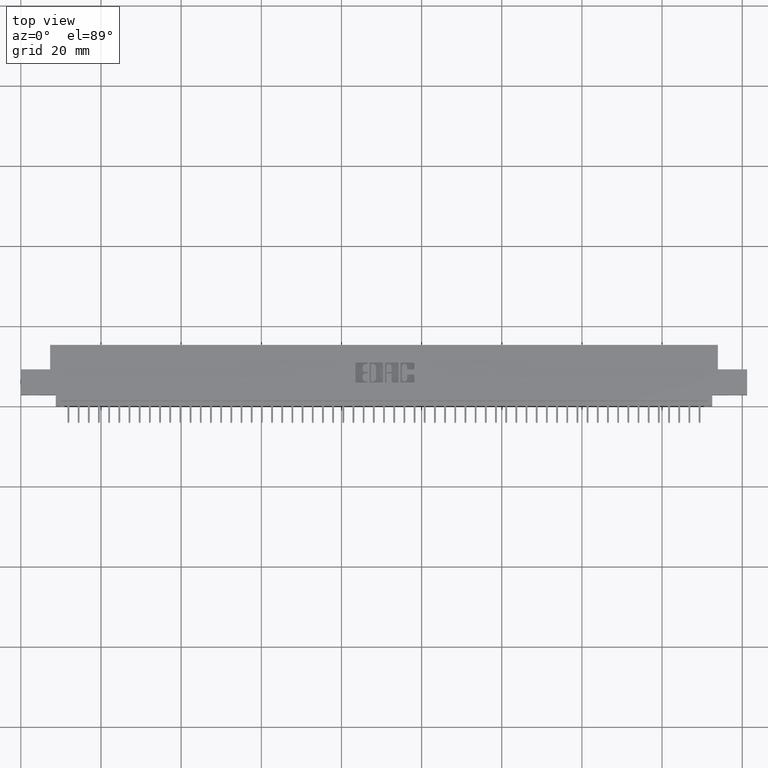
[diagram: clean part render]
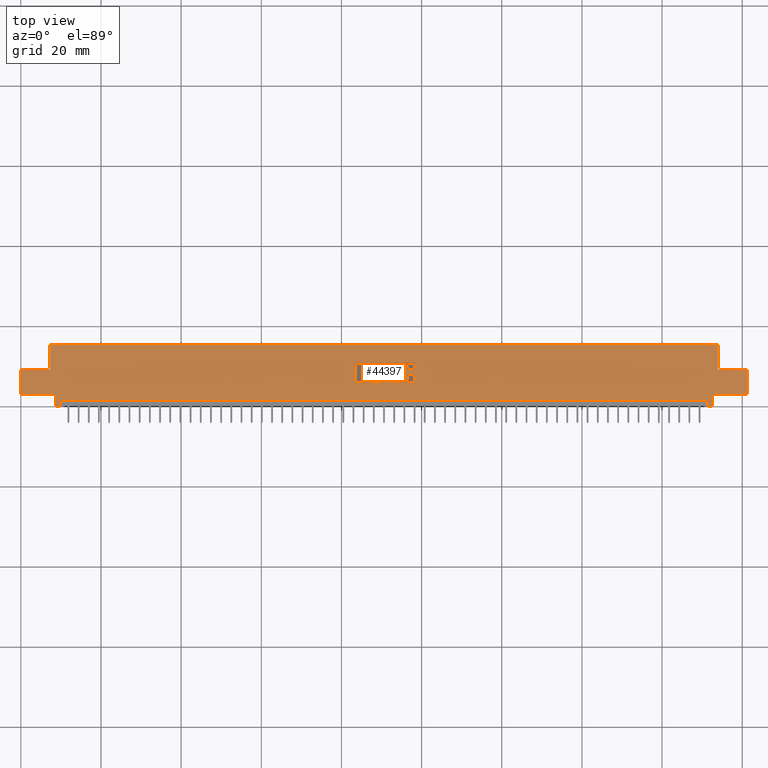
[diagram: same view with one face highlighted and labeled with its STEP entity id]
A machine part, top view. The second image highlights one B-rep face of the part: STEP entity #44397.
In plain terms, the highlighted planar face has unit normal (0, 0, -1).
Its self-contained STEP definition (entity closure, byte-faithful):
#209 = DIRECTION ( 'NONE',  ( -0.0000000000000000000, 0.0000000000000000000, 1.000000000000000000 ) ) ;
#237 = ORIENTED_EDGE ( 'NONE', *, *, #19118, .F. ) ;
#272 = VERTEX_POINT ( 'NONE', #3800 ) ;
#335 = DIRECTION ( 'NONE',  ( 0.0000000000000000000, -1.000000000000000000, 0.0000000000000000000 ) ) ;
#400 = DIRECTION ( 'NONE',  ( -0.0000000000000000000, 0.0000000000000000000, 1.000000000000000000 ) ) ;
#405 = DIRECTION ( 'NONE',  ( 1.000000000000000000, 0.0000000000000000000, 0.0000000000000000000 ) ) ;
#543 = LINE ( 'NONE', #7965, #12207 ) ;
#560 = CIRCLE ( 'NONE', #27318, 0.009815670203797057652 ) ;
#656 = CARTESIAN_POINT ( 'NONE',  ( 3.738538053301300401, 0.4133410318342096157, 0.0000000000000000000 ) ) ;
#750 = ORIENTED_EDGE ( 'NONE', *, *, #36275, .F. ) ;
#788 = EDGE_CURVE ( 'NONE', #30190, #33948, #29105, .T. ) ;
#897 = AXIS2_PLACEMENT_3D ( 'NONE', #45380, #38220, #13317 ) ;
#1010 = CIRCLE ( 'NONE', #9429, 0.006870969142657995000 ) ;
#1026 = LINE ( 'NONE', #3670, #34390 ) ;
#1047 = DIRECTION ( 'NONE',  ( 1.000000000000000000, 0.0000000000000000000, 0.0000000000000000000 ) ) ;
#1244 = AXIS2_PLACEMENT_3D ( 'NONE', #46348, #9504, #23861 ) ;
#1256 = CARTESIAN_POINT ( 'NONE',  ( 0.2874999999999999778, 0.3599999999999999867, 0.0000000000000000000 ) ) ;
#1392 = CIRCLE ( 'NONE', #22024, 0.009815670203840767480 ) ;
#1404 = VECTOR ( 'NONE', #39214, 39.37007874015748143 ) ;
#1502 = CARTESIAN_POINT ( 'NONE',  ( 0.3425000000000010814, 0.1100000000000000006, 0.0000000000000000000 ) ) ;
#1526 = CARTESIAN_POINT ( 'NONE',  ( 3.558911288571669829, 0.0000000000000000000, 0.0000000000000000000 ) ) ;
#1531 = DIRECTION ( 'NONE',  ( 0.0000000000000000000, -1.000000000000000000, 0.0000000000000000000 ) ) ;
#1546 = EDGE_CURVE ( 'NONE', #272, #44266, #21054, .T. ) ;
#1684 = VERTEX_POINT ( 'NONE', #44256 ) ;
#1748 = CARTESIAN_POINT ( 'NONE',  ( 3.400633606535351738, 0.4162857328953857294, 0.0000000000000000000 ) ) ;
#1850 = CARTESIAN_POINT ( 'NONE',  ( 3.768721239177992288, 0.3831578459575290529, 0.0000000000000000000 ) ) ;
#1857 = ORIENTED_EDGE ( 'NONE', *, *, #2955, .F. ) ;
#1963 = DIRECTION ( 'NONE',  ( -0.0000000000000000000, 0.0000000000000000000, 1.000000000000000000 ) ) ;
#1974 = CARTESIAN_POINT ( 'NONE',  ( 3.407504575677998471, 0.2337142671046474052, 0.0000000000000000000 ) ) ;
#1986 = DIRECTION ( 'NONE',  ( -0.0000000000000000000, 0.0000000000000000000, 1.000000000000000000 ) ) ;
#1991 = EDGE_CURVE ( 'NONE', #31024, #8583, #17412, .T. ) ;
#2043 = DIRECTION ( 'NONE',  ( 1.000000000000000000, 0.0000000000000000000, 0.0000000000000000000 ) ) ;
#2057 = CARTESIAN_POINT ( 'NONE',  ( 7.135000000000000675, 0.5999999999999999778, 0.0000000000000000000 ) ) ;
#2072 = DIRECTION ( 'NONE',  ( -1.000000000000000000, 0.0000000000000000000, 0.0000000000000000000 ) ) ;
#2111 = CARTESIAN_POINT ( 'NONE',  ( -1.634053534411870227E-15, 0.2268432979619607048, 0.0000000000000000000 ) ) ;
#2138 = VECTOR ( 'NONE', #43481, 39.37007874015748143 ) ;
#2147 = PLANE ( 'NONE',  #37516 ) ;
#2243 = DIRECTION ( 'NONE',  ( -0.0000000000000000000, 0.0000000000000000000, 1.000000000000000000 ) ) ;
#2252 = CIRCLE ( 'NONE', #9895, 0.02625691779517394173 ) ;
#2273 = DIRECTION ( 'NONE',  ( -0.0000000000000000000, 0.0000000000000000000, 1.000000000000000000 ) ) ;
#2368 = EDGE_CURVE ( 'NONE', #18268, #31024, #46321, .T. ) ;
#2498 = AXIS2_PLACEMENT_3D ( 'NONE', #6702, #21999, #10287 ) ;
#2527 = CARTESIAN_POINT ( 'NONE',  ( 3.652160155507788719, 0.2366589681657872979, 0.0000000000000000000 ) ) ;
#2609 = DIRECTION ( 'NONE',  ( 0.0000000000000000000, 1.000000000000000000, -0.0000000000000000000 ) ) ;
#2641 = CARTESIAN_POINT ( 'NONE',  ( 3.355726915352927886, 0.2867188862052000298, 0.0000000000000000000 ) ) ;
#2653 = EDGE_CURVE ( 'NONE', #22636, #37980, #4399, .T. ) ;
#2757 = VECTOR ( 'NONE', #42027, 39.37007874015748143 ) ;
#2772 = CIRCLE ( 'NONE', #15742, 0.009815670203841313918 ) ;
#2854 = DIRECTION ( 'NONE',  ( 0.0000000000000000000, 0.0000000000000000000, -1.000000000000000000 ) ) ;
#2955 = EDGE_CURVE ( 'NONE', #12189, #4418, #1392, .T. ) ;
#3062 = CARTESIAN_POINT ( 'NONE',  ( 3.642344485303985469, 0.3083133606535429228, 0.0000000000000000000 ) ) ;
#3067 = ORIENTED_EDGE ( 'NONE', *, *, #10583, .F. ) ;
#3247 = DIRECTION ( 'NONE',  ( -1.000000000000000000, 0.0000000000000000000, 0.0000000000000000000 ) ) ;
#3248 = DIRECTION ( 'NONE',  ( 0.0000000000000000000, 1.000000000000000000, -0.0000000000000000000 ) ) ;
#3340 = DIRECTION ( 'NONE',  ( 1.000000000000000000, 0.0000000000000000000, 0.0000000000000000000 ) ) ;
#3518 = DIRECTION ( 'NONE',  ( -0.0000000000000000000, 0.0000000000000000000, 1.000000000000000000 ) ) ;
#3542 = EDGE_CURVE ( 'NONE', #45932, #6087, #18046, .T. ) ;
#3573 = ORIENTED_EDGE ( 'NONE', *, *, #33697, .F. ) ;
#3619 = VECTOR ( 'NONE', #35672, 39.37007874015748143 ) ;
#3667 = ORIENTED_EDGE ( 'NONE', *, *, #30327, .T. ) ;
#3670 = CARTESIAN_POINT ( 'NONE',  ( 0.0000000000000000000, 0.5999999999999999778, 0.0000000000000000000 ) ) ;
#3685 = VERTEX_POINT ( 'NONE', #11819 ) ;
#3762 = CARTESIAN_POINT ( 'NONE',  ( 3.804793827176978116, 0.3539562271012330896, 0.0000000000000000000 ) ) ;
#3800 = CARTESIAN_POINT ( 'NONE',  ( 6.742500000000000604, 0.05000000000000000278, 0.0000000000000000000 ) ) ;
#3988 = DIRECTION ( 'NONE',  ( -0.0000000000000000000, -1.000000000000000000, -0.0000000000000000000 ) ) ;
#4005 = AXIS2_PLACEMENT_3D ( 'NONE', #43860, #40264, #22070 ) ;
#4033 = VERTEX_POINT ( 'NONE', #42857 ) ;
#4112 = VERTEX_POINT ( 'NONE', #26104 ) ;
#4177 = DIRECTION ( 'NONE',  ( -0.0000000000000000000, 0.0000000000000000000, 1.000000000000000000 ) ) ;
#4181 = LINE ( 'NONE', #25958, #4785 ) ;
#4207 = CARTESIAN_POINT ( 'NONE',  ( 6.792500000000000426, 0.0000000000000000000, 0.0000000000000000000 ) ) ;
#4385 = ORIENTED_EDGE ( 'NONE', *, *, #21585, .F. ) ;
#4399 = CIRCLE ( 'NONE', #6690, 0.009815670203805252486 ) ;
#4418 = VERTEX_POINT ( 'NONE', #21296 ) ;
#4442 = VERTEX_POINT ( 'NONE', #25342 ) ;
#4486 = DIRECTION ( 'NONE',  ( 1.000000000000000000, 0.0000000000000000000, 0.0000000000000000000 ) ) ;
#4557 = CIRCLE ( 'NONE', #46593, 0.006870969142648706424 ) ;
#4581 = EDGE_CURVE ( 'NONE', #45681, #29700, #6722, .T. ) ;
#4652 = DIRECTION ( 'NONE',  ( -1.000000000000000000, 0.0000000000000000000, 0.0000000000000000000 ) ) ;
#4785 = VECTOR ( 'NONE', #14958, 39.37007874015748143 ) ;
#4803 = LINE ( 'NONE', #27050, #25725 ) ;
#5035 = CIRCLE ( 'NONE', #27211, 0.009815670203803066735 ) ;
#5143 = ORIENTED_EDGE ( 'NONE', *, *, #34142, .F. ) ;
#5159 = VERTEX_POINT ( 'NONE', #28308 ) ;
#5180 = ORIENTED_EDGE ( 'NONE', *, *, #9934, .F. ) ;
#5313 = CARTESIAN_POINT ( 'NONE',  ( 3.387137060005084521, 0.3318709691426833253, 0.0000000000000000000 ) ) ;
#5396 = DIRECTION ( 'NONE',  ( -0.0000000000000000000, 0.0000000000000000000, 1.000000000000000000 ) ) ;
#5432 = DIRECTION ( 'NONE',  ( 0.0000000000000000000, 1.000000000000000000, -0.0000000000000000000 ) ) ;
#5439 = DIRECTION ( 'NONE',  ( 1.000000000000000000, 0.0000000000000000000, 0.0000000000000000000 ) ) ;
#5681 = DIRECTION ( 'NONE',  ( -0.0000000000000000000, 0.0000000000000000000, 1.000000000000000000 ) ) ;
#5724 = EDGE_CURVE ( 'NONE', #6087, #23369, #28482, .T. ) ;
#5922 = AXIS2_PLACEMENT_3D ( 'NONE', #22221, #209, #3340 ) ;
#6020 = DIRECTION ( 'NONE',  ( 1.000000000000000000, -0.0000000000000000000, -0.0000000000000000000 ) ) ;
#6087 = VERTEX_POINT ( 'NONE', #12417 ) ;
#6199 = EDGE_CURVE ( 'NONE', #24335, #39433, #1010, .T. ) ;
#6255 = DIRECTION ( 'NONE',  ( -0.0000000000000000000, 0.0000000000000000000, 1.000000000000000000 ) ) ;
#6269 = DIRECTION ( 'NONE',  ( 1.000000000000000000, 0.0000000000000000000, 0.0000000000000000000 ) ) ;
#6276 = CARTESIAN_POINT ( 'NONE',  ( 3.387137060005110278, 0.2719953808994898803, 0.0000000000000000000 ) ) ;
#6304 = CARTESIAN_POINT ( 'NONE',  ( 3.576088711428331290, 0.4133410318342096157, 0.0000000000000000000 ) ) ;
#6350 = CIRCLE ( 'NONE', #14851, 0.009815670203803066735 ) ;
#6690 = AXIS2_PLACEMENT_3D ( 'NONE', #11126, #7527, #37205 ) ;
#6702 = CARTESIAN_POINT ( 'NONE',  ( 3.738538053301265762, 0.2366589681657894073, 0.0000000000000000000 ) ) ;
#6722 = CIRCLE ( 'NONE', #34225, 0.03141014465221592805 ) ;
#6794 = CARTESIAN_POINT ( 'NONE',  ( 0.0000000000000000000, 0.5999999999999999778, 0.0000000000000000000 ) ) ;
#6843 = EDGE_CURVE ( 'NONE', #4033, #3685, #19382, .T. ) ;
#7012 = EDGE_CURVE ( 'NONE', #47021, #39433, #19714, .T. ) ;
#7126 = CIRCLE ( 'NONE', #46112, 0.006870969142663458512 ) ;
#7129 = CARTESIAN_POINT ( 'NONE',  ( 3.355726915352927886, 0.2719953808994898803, 0.0000000000000000000 ) ) ;
#7184 = EDGE_CURVE ( 'NONE', #5159, #19830, #39750, .T. ) ;
#7361 = VERTEX_POINT ( 'NONE', #19841 ) ;
#7423 = VECTOR ( 'NONE', #21397, 39.37007874015748143 ) ;
#7527 = DIRECTION ( 'NONE',  ( -0.0000000000000000000, 0.0000000000000000000, 1.000000000000000000 ) ) ;
#7539 = CIRCLE ( 'NONE', #35848, 0.009815670203795418339 ) ;
#7574 = VERTEX_POINT ( 'NONE', #7129 ) ;
#7660 = EDGE_CURVE ( 'NONE', #44634, #15181, #6350, .T. ) ;
#7775 = ORIENTED_EDGE ( 'NONE', *, *, #2653, .F. ) ;
#7849 = CARTESIAN_POINT ( 'NONE',  ( 3.864178631909941153, 0.0000000000000000000, 0.0000000000000000000 ) ) ;
#7903 = CARTESIAN_POINT ( 'NONE',  ( 3.742464321382819037, 0.0000000000000000000, 0.0000000000000000000 ) ) ;
#7915 = ORIENTED_EDGE ( 'NONE', *, *, #9397, .F. ) ;
#7965 = CARTESIAN_POINT ( 'NONE',  ( -0.0000000000000000000, 0.2268432979619826595, 0.0000000000000000000 ) ) ;
#8003 = CARTESIAN_POINT ( 'NONE',  ( 3.400633606535310438, 0.3250000000000198286, 0.0000000000000000000 ) ) ;
#8041 = ORIENTED_EDGE ( 'NONE', *, *, #6199, .F. ) ;
#8107 = LINE ( 'NONE', #44727, #30049 ) ;
#8183 = EDGE_CURVE ( 'NONE', #19830, #4033, #7126, .T. ) ;
#8200 = EDGE_CURVE ( 'NONE', #37980, #26392, #37508, .T. ) ;
#8238 = CARTESIAN_POINT ( 'NONE',  ( 0.0000000000000000000, 0.2268432979619841028, 0.0000000000000000000 ) ) ;
#8343 = VERTEX_POINT ( 'NONE', #23840 ) ;
#8351 = ORIENTED_EDGE ( 'NONE', *, *, #22962, .F. ) ;
#8433 = LINE ( 'NONE', #33811, #44978 ) ;
#8434 = DIRECTION ( 'NONE',  ( 1.000000000000000000, 0.0000000000000000000, 0.0000000000000000000 ) ) ;
#8479 = EDGE_CURVE ( 'NONE', #41148, #29700, #36510, .T. ) ;
#8583 = VERTEX_POINT ( 'NONE', #26189 ) ;
#8590 = EDGE_CURVE ( 'NONE', #32305, #15181, #22601, .T. ) ;
#8734 = VERTEX_POINT ( 'NONE', #9650 ) ;
#8738 = EDGE_CURVE ( 'NONE', #20776, #12241, #15897, .T. ) ;
#8783 = CARTESIAN_POINT ( 'NONE',  ( 0.0000000000000000000, 0.4231567020380505029, 0.0000000000000000000 ) ) ;
#8924 = CIRCLE ( 'NONE', #26506, 0.03141014465218205237 ) ;
#9022 = CARTESIAN_POINT ( 'NONE',  ( 6.847499999999999254, 0.3599999999999999867, 0.0000000000000000000 ) ) ;
#9121 = LINE ( 'NONE', #23468, #9546 ) ;
#9131 = EDGE_CURVE ( 'NONE', #44634, #45894, #23419, .T. ) ;
#9144 = DIRECTION ( 'NONE',  ( -0.0000000000000000000, 0.0000000000000000000, 1.000000000000000000 ) ) ;
#9246 = ORIENTED_EDGE ( 'NONE', *, *, #34290, .F. ) ;
#9320 = CARTESIAN_POINT ( 'NONE',  ( 3.407504575678000691, 0.4162857328953857294, 0.0000000000000000000 ) ) ;
#9397 = EDGE_CURVE ( 'NONE', #22109, #29687, #24836, .T. ) ;
#9429 = AXIS2_PLACEMENT_3D ( 'NONE', #10711, #21246, #29123 ) ;
#9504 = DIRECTION ( 'NONE',  ( -0.0000000000000000000, 0.0000000000000000000, 1.000000000000000000 ) ) ;
#9546 = VECTOR ( 'NONE', #31123, 39.37007874015748143 ) ;
#9598 = LINE ( 'NONE', #24204, #14692 ) ;
#9634 = CARTESIAN_POINT ( 'NONE',  ( 3.854362961706156998, 0.3063502266127570151, 0.0000000000000000000 ) ) ;
#9650 = CARTESIAN_POINT ( 'NONE',  ( 3.558911288571669829, 0.2366589681657894073, 0.0000000000000000000 ) ) ;
#9895 = AXIS2_PLACEMENT_3D ( 'NONE', #1850, #5681, #31750 ) ;
#9934 = EDGE_CURVE ( 'NONE', #18126, #1684, #4181, .T. ) ;
#9941 = ORIENTED_EDGE ( 'NONE', *, *, #4581, .T. ) ;
#9963 = LINE ( 'NONE', #16687, #26457 ) ;
#9965 = CARTESIAN_POINT ( 'NONE',  ( 3.400633606415414789, 0.2405852362473096806, 0.0000000000000000000 ) ) ;
#10089 = ORIENTED_EDGE ( 'NONE', *, *, #40837, .F. ) ;
#10264 = FACE_BOUND ( 'NONE', #42858, .T. ) ;
#10287 = DIRECTION ( 'NONE',  ( 1.000000000000000000, 0.0000000000000000000, 0.0000000000000000000 ) ) ;
#10385 = CARTESIAN_POINT ( 'NONE',  ( 3.701729290037014231, 0.4231567020380060384, 0.0000000000000000000 ) ) ;
#10547 = CARTESIAN_POINT ( 'NONE',  ( 3.804793827176967458, 0.2965345564089690300, 0.0000000000000000000 ) ) ;
#10583 = EDGE_CURVE ( 'NONE', #8343, #18268, #9598, .T. ) ;
#10610 = AXIS2_PLACEMENT_3D ( 'NONE', #41401, #44985, #16273 ) ;
#10636 = VERTEX_POINT ( 'NONE', #32097 ) ;
#10667 = VECTOR ( 'NONE', #6269, 39.37007874015748143 ) ;
#10711 = CARTESIAN_POINT ( 'NONE',  ( 3.582959680570987793, 0.2337142671046474052, 0.0000000000000000000 ) ) ;
#10848 = CIRCLE ( 'NONE', #897, 0.009815670203811809741 ) ;
#10971 = CARTESIAN_POINT ( 'NONE',  ( 3.768721239177998950, 0.2668421540424524840, 0.0000000000000000000 ) ) ;
#11004 = EDGE_CURVE ( 'NONE', #7361, #41008, #13792, .T. ) ;
#11031 = CARTESIAN_POINT ( 'NONE',  ( 3.794978156973166428, 0.3637718973050446669, 0.0000000000000000000 ) ) ;
#11126 = CARTESIAN_POINT ( 'NONE',  ( 3.854362961706167212, 0.3637718973050381166, 0.0000000000000000000 ) ) ;
#11245 = DIRECTION ( 'NONE',  ( 1.000000000000000000, 0.0000000000000000000, 0.0000000000000000000 ) ) ;
#11248 = CIRCLE ( 'NONE', #5922, 0.03141014465217440571 ) ;
#11297 = CIRCLE ( 'NONE', #21231, 0.009815670203796511215 ) ;
#11478 = CARTESIAN_POINT ( 'NONE',  ( 3.433270709963010425, 0.4231567020380505029, 0.0000000000000000000 ) ) ;
#11690 = DIRECTION ( 'NONE',  ( 0.0000000000000000000, 1.000000000000000000, -0.0000000000000000000 ) ) ;
#11803 = LINE ( 'NONE', #1256, #28148 ) ;
#11819 = CARTESIAN_POINT ( 'NONE',  ( 3.400633606535310438, 0.3318709691426833253, 0.0000000000000000000 ) ) ;
#11861 = CARTESIAN_POINT ( 'NONE',  ( 3.355726915352910122, 0.3780046191005192457, 0.0000000000000000000 ) ) ;
#11891 = VERTEX_POINT ( 'NONE', #5313 ) ;
#11931 = VERTEX_POINT ( 'NONE', #20371 ) ;
#12014 = ORIENTED_EDGE ( 'NONE', *, *, #36300, .F. ) ;
#12016 = EDGE_CURVE ( 'NONE', #34037, #44260, #17799, .T. ) ;
#12050 = VERTEX_POINT ( 'NONE', #28731 ) ;
#12055 = CARTESIAN_POINT ( 'NONE',  ( 3.854362961706153889, 0.2965345564089699182, 0.0000000000000000000 ) ) ;
#12129 = VECTOR ( 'NONE', #335, 39.37007874015748143 ) ;
#12189 = VERTEX_POINT ( 'NONE', #11478 ) ;
#12202 = EDGE_CURVE ( 'NONE', #31002, #37287, #8107, .T. ) ;
#12207 = VECTOR ( 'NONE', #33342, 39.37007874015748143 ) ;
#12210 = CARTESIAN_POINT ( 'NONE',  ( 0.3925000000000002376, 0.05000000000000000278, 0.0000000000000000000 ) ) ;
#12241 = VERTEX_POINT ( 'NONE', #40670 ) ;
#12417 = CARTESIAN_POINT ( 'NONE',  ( 3.728722383097458959, 0.2366589681657894073, 0.0000000000000000000 ) ) ;
#12455 = ORIENTED_EDGE ( 'NONE', *, *, #18460, .F. ) ;
#12542 = VERTEX_POINT ( 'NONE', #3762 ) ;
#12572 = EDGE_CURVE ( 'NONE', #272, #29055, #18814, .T. ) ;
#12601 = CARTESIAN_POINT ( 'NONE',  ( 3.864178631909972683, 0.0000000000000000000, 0.0000000000000000000 ) ) ;
#12799 = VERTEX_POINT ( 'NONE', #40262 ) ;
#12800 = DIRECTION ( 'NONE',  ( 1.000000000000000000, 0.0000000000000000000, 0.0000000000000000000 ) ) ;
#12917 = AXIS2_PLACEMENT_3D ( 'NONE', #13397, #20810, #28686 ) ;
#12942 = ORIENTED_EDGE ( 'NONE', *, *, #18672, .T. ) ;
#12951 = ORIENTED_EDGE ( 'NONE', *, *, #3542, .F. ) ;
#12986 = DIRECTION ( 'NONE',  ( 0.0000000000000000000, -1.000000000000000000, 0.0000000000000000000 ) ) ;
#13185 = DIRECTION ( 'NONE',  ( 1.000000000000000000, 0.0000000000000000000, 0.0000000000000000000 ) ) ;
#13317 = DIRECTION ( 'NONE',  ( 1.000000000000000000, 0.0000000000000000000, 0.0000000000000000000 ) ) ;
#13397 = CARTESIAN_POINT ( 'NONE',  ( 3.701729290037011122, 0.2366589681657803312, 0.0000000000000000000 ) ) ;
#13470 = ORIENTED_EDGE ( 'NONE', *, *, #33988, .T. ) ;
#13518 = ORIENTED_EDGE ( 'NONE', *, *, #5724, .F. ) ;
#13587 = CARTESIAN_POINT ( 'NONE',  ( 0.0000000000000000000, 0.3063502266127570151, 0.0000000000000000000 ) ) ;
#13792 = LINE ( 'NONE', #41152, #24594 ) ;
#13794 = CARTESIAN_POINT ( 'NONE',  ( 3.711544960240807267, 0.2366589681657803312, 0.0000000000000000000 ) ) ;
#14110 = CARTESIAN_POINT ( 'NONE',  ( 0.0000000000000000000, 0.3599999999999999867, 0.0000000000000000000 ) ) ;
#14243 = ORIENTED_EDGE ( 'NONE', *, *, #41496, .T. ) ;
#14319 = VECTOR ( 'NONE', #28413, 39.37007874015748143 ) ;
#14320 = CARTESIAN_POINT ( 'NONE',  ( 0.3925000000000002376, 0.05000000000000000278, 0.0000000000000000000 ) ) ;
#14383 = ORIENTED_EDGE ( 'NONE', *, *, #46190, .F. ) ;
#14471 = ORIENTED_EDGE ( 'NONE', *, *, #37992, .T. ) ;
#14484 = VERTEX_POINT ( 'NONE', #42695 ) ;
#14487 = CARTESIAN_POINT ( 'NONE',  ( 3.854362961706167212, 0.3539562271012330341, 0.0000000000000000000 ) ) ;
#14590 = ORIENTED_EDGE ( 'NONE', *, *, #1546, .F. ) ;
#14627 = ORIENTED_EDGE ( 'NONE', *, *, #17121, .T. ) ;
#14635 = ORIENTED_EDGE ( 'NONE', *, *, #37010, .F. ) ;
#14692 = VECTOR ( 'NONE', #6020, 39.37007874015748143 ) ;
#14752 = CARTESIAN_POINT ( 'NONE',  ( 3.589830649713647404, 0.2337142671046474052, 0.0000000000000000000 ) ) ;
#14851 = AXIS2_PLACEMENT_3D ( 'NONE', #2527, #5396, #2043 ) ;
#14918 = DIRECTION ( 'NONE',  ( -0.0000000000000000000, 1.000000000000000000, -0.0000000000000000000 ) ) ;
#14958 = DIRECTION ( 'NONE',  ( -1.000000000000000000, -1.189163988687022540E-13, 0.0000000000000000000 ) ) ;
#14975 = ORIENTED_EDGE ( 'NONE', *, *, #24195, .F. ) ;
#15028 = DIRECTION ( 'NONE',  ( 1.000000000000000000, 0.0000000000000000000, 0.0000000000000000000 ) ) ;
#15035 = LINE ( 'NONE', #7849, #19726 ) ;
#15091 = LINE ( 'NONE', #7903, #43546 ) ;
#15150 = ORIENTED_EDGE ( 'NONE', *, *, #36945, .F. ) ;
#15181 = VERTEX_POINT ( 'NONE', #18828 ) ;
#15239 = EDGE_CURVE ( 'NONE', #10636, #12189, #31027, .T. ) ;
#15409 = DIRECTION ( 'NONE',  ( 0.0000000000000000000, 1.000000000000000000, -0.0000000000000000000 ) ) ;
#15530 = CARTESIAN_POINT ( 'NONE',  ( 3.387137060005125822, 0.3780046191005192457, 0.0000000000000000000 ) ) ;
#15543 = VERTEX_POINT ( 'NONE', #13794 ) ;
#15631 = AXIS2_PLACEMENT_3D ( 'NONE', #43532, #17459, #32059 ) ;
#15742 = AXIS2_PLACEMENT_3D ( 'NONE', #656, #44456, #4486 ) ;
#15744 = CARTESIAN_POINT ( 'NONE',  ( 3.400633606535335751, 0.2337142671046474052, 0.0000000000000000000 ) ) ;
#15848 = DIRECTION ( 'NONE',  ( 1.000000000000000000, 0.0000000000000000000, 0.0000000000000000000 ) ) ;
#15897 = LINE ( 'NONE', #26892, #39294 ) ;
#15960 = CARTESIAN_POINT ( 'NONE',  ( 3.576088711428331290, 0.2337142671046474052, 0.0000000000000000000 ) ) ;
#16183 = CIRCLE ( 'NONE', #26859, 0.009815670203787221770 ) ;
#16244 = VERTEX_POINT ( 'NONE', #9320 ) ;
#16273 = DIRECTION ( 'NONE',  ( 1.000000000000000000, 0.0000000000000000000, 0.0000000000000000000 ) ) ;
#16442 = CARTESIAN_POINT ( 'NONE',  ( 3.585904381632127880, 0.4231567020380060384, 0.0000000000000000000 ) ) ;
#16452 = ORIENTED_EDGE ( 'NONE', *, *, #15239, .F. ) ;
#16466 = EDGE_CURVE ( 'NONE', #44266, #12799, #47095, .T. ) ;
#16529 = ORIENTED_EDGE ( 'NONE', *, *, #12572, .T. ) ;
#16530 = AXIS2_PLACEMENT_3D ( 'NONE', #10971, #25555, #15028 ) ;
#16555 = CIRCLE ( 'NONE', #43303, 0.006870969142648706424 ) ;
#16656 = LINE ( 'NONE', #31243, #2757 ) ;
#16687 = CARTESIAN_POINT ( 'NONE',  ( -0.0000000000000000000, 0.4231567020380060384, 0.0000000000000000000 ) ) ;
#16934 = VECTOR ( 'NONE', #15409, 39.37007874015748143 ) ;
#16938 = ORIENTED_EDGE ( 'NONE', *, *, #37657, .T. ) ;
#16972 = VECTOR ( 'NONE', #3247, 39.37007874015748143 ) ;
#17045 = CARTESIAN_POINT ( 'NONE',  ( 3.742464321382819037, 0.2668421540424524840, 0.0000000000000000000 ) ) ;
#17075 = LINE ( 'NONE', #1526, #22323 ) ;
#17121 = EDGE_CURVE ( 'NONE', #41008, #47021, #5035, .T. ) ;
#17279 = CARTESIAN_POINT ( 'NONE',  ( 3.804793827176967458, 0.3063502266127570151, 0.0000000000000000000 ) ) ;
#17406 = ORIENTED_EDGE ( 'NONE', *, *, #788, .T. ) ;
#17412 = LINE ( 'NONE', #20287, #14319 ) ;
#17454 = FACE_BOUND ( 'NONE', #41299, .T. ) ;
#17459 = DIRECTION ( 'NONE',  ( -0.0000000000000000000, 0.0000000000000000000, 1.000000000000000000 ) ) ;
#17496 = EDGE_CURVE ( 'NONE', #12241, #8734, #37131, .T. ) ;
#17540 = ORIENTED_EDGE ( 'NONE', *, *, #7012, .T. ) ;
#17561 = ORIENTED_EDGE ( 'NONE', *, *, #8200, .F. ) ;
#17695 = CARTESIAN_POINT ( 'NONE',  ( 0.3925000000000002376, 0.05000000000000000278, 0.0000000000000000000 ) ) ;
#17799 = CIRCLE ( 'NONE', #44549, 0.009815670203787768208 ) ;
#17812 = CARTESIAN_POINT ( 'NONE',  ( 3.296342110619919108, 0.2268432979619844359, 0.0000000000000000000 ) ) ;
#17853 = VECTOR ( 'NONE', #3248, 39.37007874015748143 ) ;
#17889 = VECTOR ( 'NONE', #11245, 39.37007874015748143 ) ;
#17964 = EDGE_CURVE ( 'NONE', #20877, #20272, #37164, .T. ) ;
#17998 = ORIENTED_EDGE ( 'NONE', *, *, #32617, .F. ) ;
#18046 = LINE ( 'NONE', #29056, #12129 ) ;
#18120 = EDGE_LOOP ( 'NONE', ( #14471, #10089, #24439, #21403, #37783, #43528, #39096, #30158, #26099, #14627, #17540, #8041, #41832, #237 ) ) ;
#18126 = VERTEX_POINT ( 'NONE', #9965 ) ;
#18268 = VERTEX_POINT ( 'NONE', #37004 ) ;
#18272 = VECTOR ( 'NONE', #34240, 39.37007874015748143 ) ;
#18333 = CARTESIAN_POINT ( 'NONE',  ( 0.3425000000000010814, 0.1100000000000000006, 0.0000000000000000000 ) ) ;
#18352 = CARTESIAN_POINT ( 'NONE',  ( 6.742500000000000604, 0.05000000000000000278, 0.0000000000000000000 ) ) ;
#18360 = CARTESIAN_POINT ( 'NONE',  ( 3.854362961706132573, 0.4133410318342103928, 0.0000000000000000000 ) ) ;
#18437 = EDGE_CURVE ( 'NONE', #8583, #34598, #30976, .T. ) ;
#18460 = EDGE_CURVE ( 'NONE', #16244, #12050, #16555, .T. ) ;
#18571 = VERTEX_POINT ( 'NONE', #36244 ) ;
#18672 = EDGE_CURVE ( 'NONE', #31002, #18571, #39591, .T. ) ;
#18814 = LINE ( 'NONE', #18352, #28519 ) ;
#18828 = CARTESIAN_POINT ( 'NONE',  ( 3.652160155507786499, 0.2268432979619841028, 0.0000000000000000000 ) ) ;
#18996 = EDGE_CURVE ( 'NONE', #45894, #7361, #560, .T. ) ;
#19118 = EDGE_CURVE ( 'NONE', #41603, #24215, #11297, .T. ) ;
#19382 = CIRCLE ( 'NONE', #46149, 0.006870969142663458512 ) ;
#19415 = CARTESIAN_POINT ( 'NONE',  ( 3.589830649713647404, 0.3083133606535450322, 0.0000000000000000000 ) ) ;
#19474 = CARTESIAN_POINT ( 'NONE',  ( 3.589830649713647404, 0.0000000000000000000, 0.0000000000000000000 ) ) ;
#19692 = EDGE_CURVE ( 'NONE', #25099, #4442, #15035, .T. ) ;
#19714 = LINE ( 'NONE', #19474, #30859 ) ;
#19726 = VECTOR ( 'NONE', #11690, 39.37007874015748143 ) ;
#19795 = CARTESIAN_POINT ( 'NONE',  ( 0.2874999999999999778, 0.3599999999999999867, 0.0000000000000000000 ) ) ;
#19830 = VERTEX_POINT ( 'NONE', #20454 ) ;
#19841 = CARTESIAN_POINT ( 'NONE',  ( 3.632528815100188435, 0.3181290308573492820, 0.0000000000000000000 ) ) ;
#19936 = VERTEX_POINT ( 'NONE', #10385 ) ;
#19983 = CARTESIAN_POINT ( 'NONE',  ( 3.742464321382819037, 0.3831578459575290529, 0.0000000000000000000 ) ) ;
#20039 = DIRECTION ( 'NONE',  ( 1.000000000000000000, 0.0000000000000000000, 0.0000000000000000000 ) ) ;
#20105 = CARTESIAN_POINT ( 'NONE',  ( 0.0000000000000000000, 0.1100000000000000006, 0.0000000000000000000 ) ) ;
#20245 = DIRECTION ( 'NONE',  ( 0.0000000000000000000, 1.000000000000000000, -0.0000000000000000000 ) ) ;
#20272 = VERTEX_POINT ( 'NONE', #1974 ) ;
#20287 = CARTESIAN_POINT ( 'NONE',  ( 7.135000000000000675, 0.1100000000000000006, 8.737854911916364890E-16 ) ) ;
#20289 = ORIENTED_EDGE ( 'NONE', *, *, #40104, .F. ) ;
#20291 = LINE ( 'NONE', #2111, #1404 ) ;
#20371 = CARTESIAN_POINT ( 'NONE',  ( 3.296342110619938648, 0.4231567020380321842, 0.0000000000000000000 ) ) ;
#20374 = CARTESIAN_POINT ( 'NONE',  ( 3.794978156973166428, 0.3831578454992594085, 0.0000000000000000000 ) ) ;
#20416 = CARTESIAN_POINT ( 'NONE',  ( 3.433270709963010425, 0.4133410318342096157, 0.0000000000000000000 ) ) ;
#20454 = CARTESIAN_POINT ( 'NONE',  ( 3.400633606415389476, 0.3181290308573562764, 0.0000000000000000000 ) ) ;
#20519 = VECTOR ( 'NONE', #12986, 39.37007874015748143 ) ;
#20648 = DIRECTION ( 'NONE',  ( 1.000000000000000000, 0.0000000000000000000, 0.0000000000000000000 ) ) ;
#20776 = VERTEX_POINT ( 'NONE', #28639 ) ;
#20810 = DIRECTION ( 'NONE',  ( -0.0000000000000000000, 0.0000000000000000000, 1.000000000000000000 ) ) ;
#20855 = DIRECTION ( 'NONE',  ( 1.000000000000000000, 0.0000000000000000000, 0.0000000000000000000 ) ) ;
#20875 = DIRECTION ( 'NONE',  ( 1.000000000000000000, 0.0000000000000000000, 0.0000000000000000000 ) ) ;
#20877 = VERTEX_POINT ( 'NONE', #32703 ) ;
#21054 = LINE ( 'NONE', #17695, #3619 ) ;
#21061 = DIRECTION ( 'NONE',  ( -1.000000000000000000, 0.0000000000000000000, 0.0000000000000000000 ) ) ;
#21231 = AXIS2_PLACEMENT_3D ( 'NONE', #38830, #39532, #35712 ) ;
#21246 = DIRECTION ( 'NONE',  ( -0.0000000000000000000, 0.0000000000000000000, 1.000000000000000000 ) ) ;
#21296 = CARTESIAN_POINT ( 'NONE',  ( 3.423455039759169871, 0.4133410318342096157, 0.0000000000000000000 ) ) ;
#21351 = EDGE_LOOP ( 'NONE', ( #13470, #43826, #31450, #22428, #3067, #14243, #3573, #20289, #37555, #12942, #35779, #17406, #38378, #22507, #14590, #16529 ) ) ;
#21397 = DIRECTION ( 'NONE',  ( -0.0000000000000000000, -1.000000000000000000, -0.0000000000000000000 ) ) ;
#21403 = ORIENTED_EDGE ( 'NONE', *, *, #40730, .F. ) ;
#21507 = VERTEX_POINT ( 'NONE', #9634 ) ;
#21508 = DIRECTION ( 'NONE',  ( -0.0000000000000000000, 0.0000000000000000000, 1.000000000000000000 ) ) ;
#21585 = EDGE_CURVE ( 'NONE', #34299, #16244, #4557, .T. ) ;
#21856 = DIRECTION ( 'NONE',  ( 1.000000000000000000, 0.0000000000000000000, 0.0000000000000000000 ) ) ;
#21906 = DIRECTION ( 'NONE',  ( -0.0000000000000000000, 0.0000000000000000000, 1.000000000000000000 ) ) ;
#21999 = DIRECTION ( 'NONE',  ( -0.0000000000000000000, 0.0000000000000000000, 1.000000000000000000 ) ) ;
#22024 = AXIS2_PLACEMENT_3D ( 'NONE', #20416, #2243, #31421 ) ;
#22049 = ORIENTED_EDGE ( 'NONE', *, *, #44144, .F. ) ;
#22070 = DIRECTION ( 'NONE',  ( 1.000000000000000000, 0.0000000000000000000, 0.0000000000000000000 ) ) ;
#22109 = VERTEX_POINT ( 'NONE', #27544 ) ;
#22191 = DIRECTION ( 'NONE',  ( -0.0000000000000000000, 0.0000000000000000000, 1.000000000000000000 ) ) ;
#22221 = CARTESIAN_POINT ( 'NONE',  ( 3.387137060005084521, 0.3632811137948578351, 0.0000000000000000000 ) ) ;
#22323 = VECTOR ( 'NONE', #46264, 39.37007874015748143 ) ;
#22428 = ORIENTED_EDGE ( 'NONE', *, *, #2368, .F. ) ;
#22496 = DIRECTION ( 'NONE',  ( -0.0000000000000000000, 1.000000000000000000, -0.0000000000000000000 ) ) ;
#22507 = ORIENTED_EDGE ( 'NONE', *, *, #16466, .F. ) ;
#22529 = VERTEX_POINT ( 'NONE', #39860 ) ;
#22601 = LINE ( 'NONE', #8238, #36999 ) ;
#22636 = VERTEX_POINT ( 'NONE', #14487 ) ;
#22962 = EDGE_CURVE ( 'NONE', #8734, #33641, #17075, .T. ) ;
#22969 = DIRECTION ( 'NONE',  ( -1.000000000000000000, -3.530861605407645268E-14, 0.0000000000000000000 ) ) ;
#23001 = CARTESIAN_POINT ( 'NONE',  ( 3.711544960240807267, 0.4133410318342004564, 0.0000000000000000000 ) ) ;
#23011 = ORIENTED_EDGE ( 'NONE', *, *, #42882, .F. ) ;
#23023 = DIRECTION ( 'NONE',  ( -0.0000000000000000000, 0.0000000000000000000, 1.000000000000000000 ) ) ;
#23050 = ORIENTED_EDGE ( 'NONE', *, *, #27869, .F. ) ;
#23186 = VECTOR ( 'NONE', #20245, 39.37007874015748143 ) ;
#23369 = VERTEX_POINT ( 'NONE', #37860 ) ;
#23419 = LINE ( 'NONE', #45446, #30739 ) ;
#23465 = CARTESIAN_POINT ( 'NONE',  ( -0.0000000000000000000, 0.4094147637527351669, 0.0000000000000000000 ) ) ;
#23468 = CARTESIAN_POINT ( 'NONE',  ( 3.286526440416115857, 0.0000000000000000000, 0.0000000000000000000 ) ) ;
#23496 = DIRECTION ( 'NONE',  ( 1.000000000000000000, 0.0000000000000000000, 0.0000000000000000000 ) ) ;
#23819 = ORIENTED_EDGE ( 'NONE', *, *, #17964, .F. ) ;
#23840 = CARTESIAN_POINT ( 'NONE',  ( 6.847499999999999254, 0.3599999999999999867, 0.0000000000000000000 ) ) ;
#23861 = DIRECTION ( 'NONE',  ( 1.000000000000000000, 0.0000000000000000000, 0.0000000000000000000 ) ) ;
#24182 = LINE ( 'NONE', #23465, #41707 ) ;
#24195 = EDGE_CURVE ( 'NONE', #26392, #22109, #33855, .T. ) ;
#24204 = CARTESIAN_POINT ( 'NONE',  ( 7.135000000000000675, 0.3599999999999999867, 0.0000000000000000000 ) ) ;
#24215 = VERTEX_POINT ( 'NONE', #6304 ) ;
#24335 = VERTEX_POINT ( 'NONE', #15960 ) ;
#24338 = LINE ( 'NONE', #38244, #30517 ) ;
#24439 = ORIENTED_EDGE ( 'NONE', *, *, #30715, .T. ) ;
#24456 = LINE ( 'NONE', #27819, #20519 ) ;
#24590 = DIRECTION ( 'NONE',  ( -1.000000000000000000, 0.0000000000000000000, 0.0000000000000000000 ) ) ;
#24594 = VECTOR ( 'NONE', #22969, 39.37007874015748143 ) ;
#24775 = CARTESIAN_POINT ( 'NONE',  ( 0.0000000000000000000, 0.4231567020380321842, 0.0000000000000000000 ) ) ;
#24809 = VECTOR ( 'NONE', #44127, 39.37007874015748143 ) ;
#24836 = LINE ( 'NONE', #25543, #34589 ) ;
#24926 = ORIENTED_EDGE ( 'NONE', *, *, #8183, .F. ) ;
#25099 = VERTEX_POINT ( 'NONE', #44355 ) ;
#25342 = CARTESIAN_POINT ( 'NONE',  ( 3.864178631909941153, 0.2965345564089699182, 0.0000000000000000000 ) ) ;
#25543 = CARTESIAN_POINT ( 'NONE',  ( 0.0000000000000000000, 0.4231567020380505029, 0.0000000000000000000 ) ) ;
#25555 = DIRECTION ( 'NONE',  ( -0.0000000000000000000, 0.0000000000000000000, 1.000000000000000000 ) ) ;
#25725 = VECTOR ( 'NONE', #30869, 39.37007874015748143 ) ;
#25850 = EDGE_CURVE ( 'NONE', #28748, #29904, #30141, .T. ) ;
#25958 = CARTESIAN_POINT ( 'NONE',  ( -2.860952991545795356E-14, 0.2405852362469053096, 0.0000000000000000000 ) ) ;
#25971 = CARTESIAN_POINT ( 'NONE',  ( 3.599646319917450654, 0.3083133606535450322, 0.0000000000000000000 ) ) ;
#26034 = CARTESIAN_POINT ( 'NONE',  ( 3.642344485303985469, 0.2366589681657872979, 0.0000000000000000000 ) ) ;
#26099 = ORIENTED_EDGE ( 'NONE', *, *, #11004, .T. ) ;
#26104 = CARTESIAN_POINT ( 'NONE',  ( 3.286526440416115857, 0.4133410318342096157, 0.0000000000000000000 ) ) ;
#26178 = CIRCLE ( 'NONE', #4005, 0.009815670203806891800 ) ;
#26189 = CARTESIAN_POINT ( 'NONE',  ( 6.792500000000000426, 0.1100000000000000006, 7.898971854500427706E-16 ) ) ;
#26221 = CARTESIAN_POINT ( 'NONE',  ( 3.738538053301300401, 0.4231567020380505029, 0.0000000000000000000 ) ) ;
#26242 = CARTESIAN_POINT ( 'NONE',  ( 3.400633606535310438, 0.3250000000000198286, 0.0000000000000000000 ) ) ;
#26299 = EDGE_CURVE ( 'NONE', #33948, #12799, #29516, .T. ) ;
#26392 = VERTEX_POINT ( 'NONE', #40778 ) ;
#26457 = VECTOR ( 'NONE', #31031, 39.37007874015748143 ) ;
#26504 = CARTESIAN_POINT ( 'NONE',  ( 3.794978156973166428, 0.0000000000000000000, 0.0000000000000000000 ) ) ;
#26506 = AXIS2_PLACEMENT_3D ( 'NONE', #6276, #35009, #20875 ) ;
#26859 = AXIS2_PLACEMENT_3D ( 'NONE', #12055, #33138, #1047 ) ;
#26892 = CARTESIAN_POINT ( 'NONE',  ( -0.0000000000000000000, 0.2268432979619826595, 0.0000000000000000000 ) ) ;
#27050 = CARTESIAN_POINT ( 'NONE',  ( 3.711544960240807267, 0.0000000000000000000, 0.0000000000000000000 ) ) ;
#27088 = CARTESIAN_POINT ( 'NONE',  ( 3.387137060005084521, 0.2867188862052000298, 0.0000000000000000000 ) ) ;
#27111 = VERTEX_POINT ( 'NONE', #2641 ) ;
#27211 = AXIS2_PLACEMENT_3D ( 'NONE', #25971, #21906, #42233 ) ;
#27274 = CARTESIAN_POINT ( 'NONE',  ( 3.794978156973179750, 0.2965345564089681418, 0.0000000000000000000 ) ) ;
#27318 = AXIS2_PLACEMENT_3D ( 'NONE', #34762, #1963, #45758 ) ;
#27385 = EDGE_LOOP ( 'NONE', ( #9941, #30729, #29509, #14635, #46944, #24926, #30453, #44772, #750, #3667, #5180, #37961, #23819, #30127, #39036, #47122, #23011, #42157, #12455, #4385, #15150 ) ) ;
#27544 = CARTESIAN_POINT ( 'NONE',  ( 3.854362961706168988, 0.4231567020380505029, 0.0000000000000000000 ) ) ;
#27819 = CARTESIAN_POINT ( 'NONE',  ( 3.794978156973179750, 0.0000000000000000000, 0.0000000000000000000 ) ) ;
#27869 = EDGE_CURVE ( 'NONE', #4418, #29587, #16656, .T. ) ;
#28003 = AXIS2_PLACEMENT_3D ( 'NONE', #41228, #9144, #8434 ) ;
#28035 = VECTOR ( 'NONE', #31451, 39.37007874015748143 ) ;
#28094 = VERTEX_POINT ( 'NONE', #23001 ) ;
#28104 = VECTOR ( 'NONE', #22496, 39.37007874015748143 ) ;
#28148 = VECTOR ( 'NONE', #14918, 39.37007874015748143 ) ;
#28262 = ORIENTED_EDGE ( 'NONE', *, *, #43479, .T. ) ;
#28298 = CARTESIAN_POINT ( 'NONE',  ( 0.2874999999999999778, 0.5999999999999999778, 0.0000000000000000000 ) ) ;
#28308 = CARTESIAN_POINT ( 'NONE',  ( 3.387137060005084521, 0.3181290308573562764, 0.0000000000000000000 ) ) ;
#28361 = EDGE_CURVE ( 'NONE', #4112, #28748, #9121, .T. ) ;
#28413 = DIRECTION ( 'NONE',  ( -1.000000000000000000, 0.0000000000000000000, -2.449293598294706414E-16 ) ) ;
#28482 = CIRCLE ( 'NONE', #2498, 0.009815670203806891800 ) ;
#28519 = VECTOR ( 'NONE', #3988, 39.37007874015748143 ) ;
#28639 = CARTESIAN_POINT ( 'NONE',  ( 3.433270709962976674, 0.2268432979619826595, 0.0000000000000000000 ) ) ;
#28686 = DIRECTION ( 'NONE',  ( 1.000000000000000000, 0.0000000000000000000, 0.0000000000000000000 ) ) ;
#28731 = CARTESIAN_POINT ( 'NONE',  ( 3.400633606535351738, 0.4231567020380321842, 0.0000000000000000000 ) ) ;
#28748 = VERTEX_POINT ( 'NONE', #38521 ) ;
#28812 = CARTESIAN_POINT ( 'NONE',  ( 0.0000000000000000000, 0.0000000000000000000, 0.0000000000000000000 ) ) ;
#28880 = CARTESIAN_POINT ( 'NONE',  ( 3.549095618367828386, 0.4133410318342094492, 0.0000000000000000000 ) ) ;
#28961 = CARTESIAN_POINT ( 'NONE',  ( 3.387137060005125822, 0.4094147637527351669, 0.0000000000000000000 ) ) ;
#29055 = VERTEX_POINT ( 'NONE', #39308 ) ;
#29056 = CARTESIAN_POINT ( 'NONE',  ( 3.728722383097458959, 0.0000000000000000000, 0.0000000000000000000 ) ) ;
#29105 = LINE ( 'NONE', #18333, #2138 ) ;
#29123 = DIRECTION ( 'NONE',  ( 1.000000000000000000, 0.0000000000000000000, 0.0000000000000000000 ) ) ;
#29259 = EDGE_CURVE ( 'NONE', #20272, #18126, #39414, .T. ) ;
#29301 = ORIENTED_EDGE ( 'NONE', *, *, #37762, .F. ) ;
#29509 = ORIENTED_EDGE ( 'NONE', *, *, #30888, .T. ) ;
#29516 = LINE ( 'NONE', #28812, #24809 ) ;
#29587 = VERTEX_POINT ( 'NONE', #41057 ) ;
#29634 = ORIENTED_EDGE ( 'NONE', *, *, #47042, .F. ) ;
#29687 = VERTEX_POINT ( 'NONE', #26221 ) ;
#29700 = VERTEX_POINT ( 'NONE', #11861 ) ;
#29904 = VERTEX_POINT ( 'NONE', #17812 ) ;
#30049 = VECTOR ( 'NONE', #32783, 39.37007874015748143 ) ;
#30127 = ORIENTED_EDGE ( 'NONE', *, *, #32620, .F. ) ;
#30141 = CIRCLE ( 'NONE', #15631, 0.009815670203805798924 ) ;
#30158 = ORIENTED_EDGE ( 'NONE', *, *, #18996, .T. ) ;
#30190 = VERTEX_POINT ( 'NONE', #1502 ) ;
#30325 = CARTESIAN_POINT ( 'NONE',  ( 3.355726915352910122, 0.3632811137948578351, 0.0000000000000000000 ) ) ;
#30327 = EDGE_CURVE ( 'NONE', #7574, #1684, #8924, .T. ) ;
#30453 = ORIENTED_EDGE ( 'NONE', *, *, #7184, .F. ) ;
#30517 = VECTOR ( 'NONE', #5432, 39.37007874015748143 ) ;
#30715 = EDGE_CURVE ( 'NONE', #28094, #15543, #4803, .T. ) ;
#30729 = ORIENTED_EDGE ( 'NONE', *, *, #8479, .F. ) ;
#30739 = VECTOR ( 'NONE', #2609, 39.37007874015748143 ) ;
#30808 = CARTESIAN_POINT ( 'NONE',  ( 3.854362961706134794, 0.2366589681657894073, 0.0000000000000000000 ) ) ;
#30859 = VECTOR ( 'NONE', #1531, 39.37007874015748143 ) ;
#30869 = DIRECTION ( 'NONE',  ( 0.0000000000000000000, -1.000000000000000000, 0.0000000000000000000 ) ) ;
#30888 = EDGE_CURVE ( 'NONE', #41148, #11891, #11248, .T. ) ;
#30976 = LINE ( 'NONE', #38892, #28035 ) ;
#31002 = VERTEX_POINT ( 'NONE', #14110 ) ;
#31009 = DIRECTION ( 'NONE',  ( -0.0000000000000000000, -1.000000000000000000, -0.0000000000000000000 ) ) ;
#31024 = VERTEX_POINT ( 'NONE', #33712 ) ;
#31027 = LINE ( 'NONE', #8783, #35610 ) ;
#31031 = DIRECTION ( 'NONE',  ( 1.000000000000000000, 0.0000000000000000000, 0.0000000000000000000 ) ) ;
#31123 = DIRECTION ( 'NONE',  ( 0.0000000000000000000, -1.000000000000000000, 0.0000000000000000000 ) ) ;
#31225 = ORIENTED_EDGE ( 'NONE', *, *, #33664, .F. ) ;
#31229 = CIRCLE ( 'NONE', #37404, 0.009815670203806345362 ) ;
#31243 = CARTESIAN_POINT ( 'NONE',  ( 3.423455039759169871, 0.0000000000000000000, 0.0000000000000000000 ) ) ;
#31298 = ORIENTED_EDGE ( 'NONE', *, *, #17496, .F. ) ;
#31421 = DIRECTION ( 'NONE',  ( 1.000000000000000000, 0.0000000000000000000, 0.0000000000000000000 ) ) ;
#31450 = ORIENTED_EDGE ( 'NONE', *, *, #1991, .F. ) ;
#31451 = DIRECTION ( 'NONE',  ( -0.0000000000000000000, -1.000000000000000000, -0.0000000000000000000 ) ) ;
#31635 = VERTEX_POINT ( 'NONE', #28298 ) ;
#31730 = CARTESIAN_POINT ( 'NONE',  ( 3.355726915352910122, 0.0000000000000000000, 0.0000000000000000000 ) ) ;
#31750 = DIRECTION ( 'NONE',  ( 1.000000000000000000, 0.0000000000000000000, 0.0000000000000000000 ) ) ;
#31869 = CARTESIAN_POINT ( 'NONE',  ( 0.3425000000000010814, 0.0000000000000000000, 0.0000000000000000000 ) ) ;
#32052 = FACE_BOUND ( 'NONE', #18120, .T. ) ;
#32059 = DIRECTION ( 'NONE',  ( 1.000000000000000000, 0.0000000000000000000, 0.0000000000000000000 ) ) ;
#32076 = CARTESIAN_POINT ( 'NONE',  ( 0.0000000000000000000, 0.3318709691426833253, 0.0000000000000000000 ) ) ;
#32097 = CARTESIAN_POINT ( 'NONE',  ( 3.549095618367896776, 0.4231567020380505029, 0.0000000000000000000 ) ) ;
#32305 = VERTEX_POINT ( 'NONE', #40663 ) ;
#32521 = CARTESIAN_POINT ( 'NONE',  ( 3.701729290037012010, 0.4133410318342098377, 0.0000000000000000000 ) ) ;
#32617 = EDGE_CURVE ( 'NONE', #21507, #34037, #46371, .T. ) ;
#32620 = EDGE_CURVE ( 'NONE', #29904, #20877, #20291, .T. ) ;
#32703 = CARTESIAN_POINT ( 'NONE',  ( 3.400633606415414789, 0.2268432979619851853, 0.0000000000000000000 ) ) ;
#32755 = LINE ( 'NONE', #43996, #10667 ) ;
#32783 = DIRECTION ( 'NONE',  ( 1.000000000000000000, 0.0000000000000000000, 0.0000000000000000000 ) ) ;
#32983 = DIRECTION ( 'NONE',  ( -0.0000000000000000000, 0.0000000000000000000, 1.000000000000000000 ) ) ;
#33138 = DIRECTION ( 'NONE',  ( -0.0000000000000000000, 0.0000000000000000000, 1.000000000000000000 ) ) ;
#33342 = DIRECTION ( 'NONE',  ( 1.000000000000000000, 0.0000000000000000000, 0.0000000000000000000 ) ) ;
#33641 = VERTEX_POINT ( 'NONE', #43177 ) ;
#33664 = EDGE_CURVE ( 'NONE', #23369, #14484, #543, .T. ) ;
#33697 = EDGE_CURVE ( 'NONE', #31635, #41729, #1026, .T. ) ;
#33712 = CARTESIAN_POINT ( 'NONE',  ( 7.135000000000000675, 0.1100000000000000006, 8.737854911916364890E-16 ) ) ;
#33741 = AXIS2_PLACEMENT_3D ( 'NONE', #28880, #3518, #36794 ) ;
#33811 = CARTESIAN_POINT ( 'NONE',  ( -0.0000000000000000000, 0.3539562271012330896, 0.0000000000000000000 ) ) ;
#33843 = CARTESIAN_POINT ( 'NONE',  ( 3.355726915352927886, 0.0000000000000000000, 0.0000000000000000000 ) ) ;
#33855 = CIRCLE ( 'NONE', #39971, 0.009815670203840221042 ) ;
#33941 = DIRECTION ( 'NONE',  ( 0.0000000000000000000, -1.000000000000000000, 0.0000000000000000000 ) ) ;
#33948 = VERTEX_POINT ( 'NONE', #31869 ) ;
#33988 = EDGE_CURVE ( 'NONE', #29055, #34598, #32755, .T. ) ;
#34037 = VERTEX_POINT ( 'NONE', #17279 ) ;
#34142 = EDGE_CURVE ( 'NONE', #42597, #44116, #38010, .T. ) ;
#34225 = AXIS2_PLACEMENT_3D ( 'NONE', #15530, #40662, #44718 ) ;
#34240 = DIRECTION ( 'NONE',  ( -1.000000000000000000, -0.0000000000000000000, -0.0000000000000000000 ) ) ;
#34290 = EDGE_CURVE ( 'NONE', #14484, #25099, #31229, .T. ) ;
#34299 = VERTEX_POINT ( 'NONE', #45885 ) ;
#34390 = VECTOR ( 'NONE', #21856, 39.37007874015748143 ) ;
#34589 = VECTOR ( 'NONE', #39456, 39.37007874015748143 ) ;
#34598 = VERTEX_POINT ( 'NONE', #4207 ) ;
#34696 = VERTEX_POINT ( 'NONE', #19983 ) ;
#34762 = CARTESIAN_POINT ( 'NONE',  ( 3.632528815100188435, 0.3083133606535522486, 0.0000000000000000000 ) ) ;
#34889 = CARTESIAN_POINT ( 'NONE',  ( 3.599646319917450654, 0.3181290308573481163, 0.0000000000000000000 ) ) ;
#34937 = FACE_OUTER_BOUND ( 'NONE', #21351, .T. ) ;
#35009 = DIRECTION ( 'NONE',  ( -0.0000000000000000000, 0.0000000000000000000, 1.000000000000000000 ) ) ;
#35050 = AXIS2_PLACEMENT_3D ( 'NONE', #27088, #23023, #23496 ) ;
#35079 = VECTOR ( 'NONE', #24590, 39.37007874015748143 ) ;
#35290 = CIRCLE ( 'NONE', #33741, 0.009815670203841313918 ) ;
#35575 = EDGE_CURVE ( 'NONE', #30190, #18571, #41655, .T. ) ;
#35610 = VECTOR ( 'NONE', #2072, 39.37007874015748143 ) ;
#35653 = CARTESIAN_POINT ( 'NONE',  ( 0.0000000000000000000, 0.5999999999999999778, 0.0000000000000000000 ) ) ;
#35672 = DIRECTION ( 'NONE',  ( -1.000000000000000000, -0.0000000000000000000, -0.0000000000000000000 ) ) ;
#35712 = DIRECTION ( 'NONE',  ( 1.000000000000000000, 0.0000000000000000000, 0.0000000000000000000 ) ) ;
#35779 = ORIENTED_EDGE ( 'NONE', *, *, #35575, .F. ) ;
#35848 = AXIS2_PLACEMENT_3D ( 'NONE', #32521, #21508, #47108 ) ;
#36058 = CARTESIAN_POINT ( 'NONE',  ( 6.847499999999999254, 0.5999999999999999778, 0.0000000000000000000 ) ) ;
#36244 = CARTESIAN_POINT ( 'NONE',  ( 0.0000000000000000000, 0.1100000000000000006, 0.0000000000000000000 ) ) ;
#36275 = EDGE_CURVE ( 'NONE', #7574, #27111, #36970, .T. ) ;
#36300 = EDGE_CURVE ( 'NONE', #4442, #21507, #16183, .T. ) ;
#36510 = LINE ( 'NONE', #31730, #17853 ) ;
#36626 = CIRCLE ( 'NONE', #10610, 0.009815670203822736764 ) ;
#36794 = DIRECTION ( 'NONE',  ( 1.000000000000000000, 0.0000000000000000000, 0.0000000000000000000 ) ) ;
#36945 = EDGE_CURVE ( 'NONE', #45681, #34299, #24182, .T. ) ;
#36970 = LINE ( 'NONE', #33843, #16934 ) ;
#36999 = VECTOR ( 'NONE', #4652, 39.37007874015748143 ) ;
#37004 = CARTESIAN_POINT ( 'NONE',  ( 7.135000000000000675, 0.3599999999999999867, 0.0000000000000000000 ) ) ;
#37010 = EDGE_CURVE ( 'NONE', #3685, #11891, #46201, .T. ) ;
#37114 = DIRECTION ( 'NONE',  ( 0.0000000000000000000, 1.000000000000000000, -0.0000000000000000000 ) ) ;
#37131 = CIRCLE ( 'NONE', #28003, 0.009815670203806891800 ) ;
#37164 = CIRCLE ( 'NONE', #1244, 0.006870969142662365636 ) ;
#37205 = DIRECTION ( 'NONE',  ( 1.000000000000000000, 0.0000000000000000000, 0.0000000000000000000 ) ) ;
#37287 = VERTEX_POINT ( 'NONE', #19795 ) ;
#37353 = ORIENTED_EDGE ( 'NONE', *, *, #12016, .F. ) ;
#37404 = AXIS2_PLACEMENT_3D ( 'NONE', #30808, #45643, #20039 ) ;
#37462 = DIRECTION ( 'NONE',  ( 1.000000000000000000, 0.0000000000000000000, 0.0000000000000000000 ) ) ;
#37508 = LINE ( 'NONE', #12601, #23186 ) ;
#37516 = AXIS2_PLACEMENT_3D ( 'NONE', #35653, #2854, #45698 ) ;
#37527 = ORIENTED_EDGE ( 'NONE', *, *, #8738, .F. ) ;
#37555 = ORIENTED_EDGE ( 'NONE', *, *, #12202, .F. ) ;
#37657 = EDGE_CURVE ( 'NONE', #40199, #22529, #47060, .T. ) ;
#37762 = EDGE_CURVE ( 'NONE', #29687, #45932, #2772, .T. ) ;
#37783 = ORIENTED_EDGE ( 'NONE', *, *, #8590, .T. ) ;
#37860 = CARTESIAN_POINT ( 'NONE',  ( 3.738538053301265762, 0.2268432979619826595, 0.0000000000000000000 ) ) ;
#37922 = DIRECTION ( 'NONE',  ( 1.000000000000000000, 0.0000000000000000000, 0.0000000000000000000 ) ) ;
#37961 = ORIENTED_EDGE ( 'NONE', *, *, #29259, .F. ) ;
#37980 = VERTEX_POINT ( 'NONE', #46345 ) ;
#37992 = EDGE_CURVE ( 'NONE', #41603, #19936, #9963, .T. ) ;
#38010 = LINE ( 'NONE', #26504, #44319 ) ;
#38220 = DIRECTION ( 'NONE',  ( -0.0000000000000000000, 0.0000000000000000000, 1.000000000000000000 ) ) ;
#38244 = CARTESIAN_POINT ( 'NONE',  ( 3.576088711428331290, 0.0000000000000000000, 0.0000000000000000000 ) ) ;
#38378 = ORIENTED_EDGE ( 'NONE', *, *, #26299, .T. ) ;
#38521 = CARTESIAN_POINT ( 'NONE',  ( 3.286526440416115857, 0.2366589681657894073, 0.0000000000000000000 ) ) ;
#38824 = VECTOR ( 'NONE', #31009, 39.37007874015748143 ) ;
#38830 = CARTESIAN_POINT ( 'NONE',  ( 3.585904381632127880, 0.4133410318342096157, 0.0000000000000000000 ) ) ;
#38892 = CARTESIAN_POINT ( 'NONE',  ( 6.792500000000000426, 0.1100000000000000006, 7.898971854500427706E-16 ) ) ;
#39036 = ORIENTED_EDGE ( 'NONE', *, *, #25850, .F. ) ;
#39096 = ORIENTED_EDGE ( 'NONE', *, *, #9131, .T. ) ;
#39214 = DIRECTION ( 'NONE',  ( 1.000000000000000000, 7.203446383881635636E-15, 0.0000000000000000000 ) ) ;
#39242 = DIRECTION ( 'NONE',  ( -0.0000000000000000000, -1.000000000000000000, -0.0000000000000000000 ) ) ;
#39294 = VECTOR ( 'NONE', #37922, 39.37007874015748143 ) ;
#39308 = CARTESIAN_POINT ( 'NONE',  ( 6.742500000000000604, 0.0000000000000000000, 0.0000000000000000000 ) ) ;
#39414 = CIRCLE ( 'NONE', #45512, 0.006870969142662365636 ) ;
#39433 = VERTEX_POINT ( 'NONE', #14752 ) ;
#39456 = DIRECTION ( 'NONE',  ( -1.000000000000000000, 0.0000000000000000000, 0.0000000000000000000 ) ) ;
#39532 = DIRECTION ( 'NONE',  ( -0.0000000000000000000, 0.0000000000000000000, 1.000000000000000000 ) ) ;
#39591 = LINE ( 'NONE', #6794, #7423 ) ;
#39750 = LINE ( 'NONE', #44035, #17889 ) ;
#39860 = CARTESIAN_POINT ( 'NONE',  ( 3.794978156973179750, 0.2668421540424524840, 0.0000000000000000000 ) ) ;
#39971 = AXIS2_PLACEMENT_3D ( 'NONE', #18360, #22191, #405 ) ;
#40104 = EDGE_CURVE ( 'NONE', #37287, #31635, #11803, .T. ) ;
#40148 = CARTESIAN_POINT ( 'NONE',  ( 3.728722383097458959, 0.4133410318342096157, 0.0000000000000000000 ) ) ;
#40162 = ORIENTED_EDGE ( 'NONE', *, *, #40183, .F. ) ;
#40175 = VECTOR ( 'NONE', #21061, 39.37007874015748143 ) ;
#40183 = EDGE_CURVE ( 'NONE', #44260, #22529, #24456, .T. ) ;
#40199 = VERTEX_POINT ( 'NONE', #17045 ) ;
#40262 = CARTESIAN_POINT ( 'NONE',  ( 0.3925000000000002376, 0.0000000000000000000, 0.0000000000000000000 ) ) ;
#40264 = DIRECTION ( 'NONE',  ( -0.0000000000000000000, 0.0000000000000000000, 1.000000000000000000 ) ) ;
#40402 = CIRCLE ( 'NONE', #35050, 0.03141014465215637153 ) ;
#40533 = ORIENTED_EDGE ( 'NONE', *, *, #42527, .F. ) ;
#40662 = DIRECTION ( 'NONE',  ( -0.0000000000000000000, 0.0000000000000000000, 1.000000000000000000 ) ) ;
#40663 = CARTESIAN_POINT ( 'NONE',  ( 3.701729290037011122, 0.2268432979619841028, 0.0000000000000000000 ) ) ;
#40670 = CARTESIAN_POINT ( 'NONE',  ( 3.549095618367862581, 0.2268432979619826595, 0.0000000000000000000 ) ) ;
#40730 = EDGE_CURVE ( 'NONE', #32305, #15543, #44128, .T. ) ;
#40778 = CARTESIAN_POINT ( 'NONE',  ( 3.864178631909972683, 0.4133410318341942946, 0.0000000000000000000 ) ) ;
#40834 = ORIENTED_EDGE ( 'NONE', *, *, #19692, .F. ) ;
#40837 = EDGE_CURVE ( 'NONE', #28094, #19936, #7539, .T. ) ;
#41008 = VERTEX_POINT ( 'NONE', #34889 ) ;
#41057 = CARTESIAN_POINT ( 'NONE',  ( 3.423455039759169871, 0.2366589681657894073, 0.0000000000000000000 ) ) ;
#41148 = VERTEX_POINT ( 'NONE', #30325 ) ;
#41152 = CARTESIAN_POINT ( 'NONE',  ( -1.123269580619305553E-14, 0.3181290308572209957, 0.0000000000000000000 ) ) ;
#41228 = CARTESIAN_POINT ( 'NONE',  ( 3.549095618367862581, 0.2366589681657894073, 0.0000000000000000000 ) ) ;
#41299 = EDGE_LOOP ( 'NONE', ( #7775, #40533, #14383, #5143, #28262, #22049, #16938, #40162, #37353, #17998, #12014, #40834, #9246, #31225, #13518, #12951, #29301, #7915, #14975, #17561 ) ) ;
#41401 = CARTESIAN_POINT ( 'NONE',  ( 3.296342110619938648, 0.4133410318342096157, 0.0000000000000000000 ) ) ;
#41496 = EDGE_CURVE ( 'NONE', #8343, #41729, #41808, .T. ) ;
#41603 = VERTEX_POINT ( 'NONE', #16442 ) ;
#41655 = LINE ( 'NONE', #20105, #18272 ) ;
#41707 = VECTOR ( 'NONE', #13185, 39.37007874015748143 ) ;
#41729 = VERTEX_POINT ( 'NONE', #36058 ) ;
#41808 = LINE ( 'NONE', #9022, #28104 ) ;
#41832 = ORIENTED_EDGE ( 'NONE', *, *, #43447, .T. ) ;
#42027 = DIRECTION ( 'NONE',  ( 0.0000000000000000000, -1.000000000000000000, 0.0000000000000000000 ) ) ;
#42157 = ORIENTED_EDGE ( 'NONE', *, *, #46303, .F. ) ;
#42233 = DIRECTION ( 'NONE',  ( 1.000000000000000000, 0.0000000000000000000, 0.0000000000000000000 ) ) ;
#42468 = EDGE_CURVE ( 'NONE', #5159, #27111, #40402, .T. ) ;
#42527 = EDGE_CURVE ( 'NONE', #12542, #22636, #8433, .T. ) ;
#42597 = VERTEX_POINT ( 'NONE', #20374 ) ;
#42695 = CARTESIAN_POINT ( 'NONE',  ( 3.854362961706134794, 0.2268432979619826595, 0.0000000000000000000 ) ) ;
#42857 = CARTESIAN_POINT ( 'NONE',  ( 3.407504575677973602, 0.3250000000000198286, 0.0000000000000000000 ) ) ;
#42858 = EDGE_LOOP ( 'NONE', ( #44418, #8351, #31298, #37527, #29634, #23050, #1857, #16452 ) ) ;
#42882 = EDGE_CURVE ( 'NONE', #11931, #4112, #36626, .T. ) ;
#43177 = CARTESIAN_POINT ( 'NONE',  ( 3.558911288571669829, 0.4133410318342096157, 0.0000000000000000000 ) ) ;
#43303 = AXIS2_PLACEMENT_3D ( 'NONE', #45576, #2273, #12800 ) ;
#43447 = EDGE_CURVE ( 'NONE', #24335, #24215, #24338, .T. ) ;
#43479 = EDGE_CURVE ( 'NONE', #42597, #34696, #2252, .T. ) ;
#43481 = DIRECTION ( 'NONE',  ( -0.0000000000000000000, -1.000000000000000000, -0.0000000000000000000 ) ) ;
#43528 = ORIENTED_EDGE ( 'NONE', *, *, #7660, .F. ) ;
#43532 = CARTESIAN_POINT ( 'NONE',  ( 3.296342110619922661, 0.2366589681657894073, 0.0000000000000000000 ) ) ;
#43546 = VECTOR ( 'NONE', #37114, 39.37007874015748143 ) ;
#43826 = ORIENTED_EDGE ( 'NONE', *, *, #18437, .F. ) ;
#43860 = CARTESIAN_POINT ( 'NONE',  ( 3.433270709962976674, 0.2366589681657894073, 0.0000000000000000000 ) ) ;
#43916 = LINE ( 'NONE', #24775, #16972 ) ;
#43996 = CARTESIAN_POINT ( 'NONE',  ( 0.0000000000000000000, 0.0000000000000000000, 0.0000000000000000000 ) ) ;
#44035 = CARTESIAN_POINT ( 'NONE',  ( -0.0000000000000000000, 0.3181290308573562764, 0.0000000000000000000 ) ) ;
#44097 = VECTOR ( 'NONE', #39242, 39.37007874015748143 ) ;
#44116 = VERTEX_POINT ( 'NONE', #11031 ) ;
#44127 = DIRECTION ( 'NONE',  ( 1.000000000000000000, 0.0000000000000000000, 0.0000000000000000000 ) ) ;
#44128 = CIRCLE ( 'NONE', #12917, 0.009815670203795964777 ) ;
#44144 = EDGE_CURVE ( 'NONE', #40199, #34696, #15091, .T. ) ;
#44206 = DIRECTION ( 'NONE',  ( 1.000000000000000000, 0.0000000000000000000, 0.0000000000000000000 ) ) ;
#44256 = CARTESIAN_POINT ( 'NONE',  ( 3.387137060005110278, 0.2405852362473080708, 0.0000000000000000000 ) ) ;
#44260 = VERTEX_POINT ( 'NONE', #27274 ) ;
#44266 = VERTEX_POINT ( 'NONE', #12210 ) ;
#44319 = VECTOR ( 'NONE', #33941, 39.37007874015748143 ) ;
#44355 = CARTESIAN_POINT ( 'NONE',  ( 3.864178631909941153, 0.2366589681657824407, 0.0000000000000000000 ) ) ;
#44397 = ADVANCED_FACE ( 'NONE', ( #17454, #45935, #34937, #10264, #32052 ), #2147, .F. ) ;
#44418 = ORIENTED_EDGE ( 'NONE', *, *, #45873, .F. ) ;
#44456 = DIRECTION ( 'NONE',  ( -0.0000000000000000000, 0.0000000000000000000, 1.000000000000000000 ) ) ;
#44549 = AXIS2_PLACEMENT_3D ( 'NONE', #10547, #6255, #20855 ) ;
#44634 = VERTEX_POINT ( 'NONE', #26034 ) ;
#44718 = DIRECTION ( 'NONE',  ( 1.000000000000000000, 0.0000000000000000000, 0.0000000000000000000 ) ) ;
#44727 = CARTESIAN_POINT ( 'NONE',  ( 0.0000000000000000000, 0.3599999999999999867, 0.0000000000000000000 ) ) ;
#44772 = ORIENTED_EDGE ( 'NONE', *, *, #42468, .T. ) ;
#44978 = VECTOR ( 'NONE', #15848, 39.37007874015748143 ) ;
#44985 = DIRECTION ( 'NONE',  ( -0.0000000000000000000, 0.0000000000000000000, 1.000000000000000000 ) ) ;
#45380 = CARTESIAN_POINT ( 'NONE',  ( 3.804793827176978116, 0.3637718973050446669, 0.0000000000000000000 ) ) ;
#45446 = CARTESIAN_POINT ( 'NONE',  ( 3.642344485303985469, 0.0000000000000000000, 0.0000000000000000000 ) ) ;
#45512 = AXIS2_PLACEMENT_3D ( 'NONE', #15744, #32983, #5439 ) ;
#45576 = CARTESIAN_POINT ( 'NONE',  ( 3.400633606535351738, 0.4162857328953857294, 0.0000000000000000000 ) ) ;
#45643 = DIRECTION ( 'NONE',  ( -0.0000000000000000000, 0.0000000000000000000, 1.000000000000000000 ) ) ;
#45681 = VERTEX_POINT ( 'NONE', #28961 ) ;
#45698 = DIRECTION ( 'NONE',  ( -1.000000000000000000, 0.0000000000000000000, -0.0000000000000000000 ) ) ;
#45758 = DIRECTION ( 'NONE',  ( 1.000000000000000000, 0.0000000000000000000, 0.0000000000000000000 ) ) ;
#45873 = EDGE_CURVE ( 'NONE', #33641, #10636, #35290, .T. ) ;
#45885 = CARTESIAN_POINT ( 'NONE',  ( 3.400633606535351738, 0.4094147637527351669, 0.0000000000000000000 ) ) ;
#45894 = VERTEX_POINT ( 'NONE', #3062 ) ;
#45932 = VERTEX_POINT ( 'NONE', #40148 ) ;
#45935 = FACE_BOUND ( 'NONE', #27385, .T. ) ;
#46112 = AXIS2_PLACEMENT_3D ( 'NONE', #26242, #400, #44206 ) ;
#46149 = AXIS2_PLACEMENT_3D ( 'NONE', #8003, #4177, #37462 ) ;
#46190 = EDGE_CURVE ( 'NONE', #44116, #12542, #10848, .T. ) ;
#46201 = LINE ( 'NONE', #32076, #40175 ) ;
#46264 = DIRECTION ( 'NONE',  ( 0.0000000000000000000, 1.000000000000000000, -0.0000000000000000000 ) ) ;
#46303 = EDGE_CURVE ( 'NONE', #12050, #11931, #43916, .T. ) ;
#46321 = LINE ( 'NONE', #2057, #38824 ) ;
#46345 = CARTESIAN_POINT ( 'NONE',  ( 3.864178631909972683, 0.3637718973050381166, 0.0000000000000000000 ) ) ;
#46348 = CARTESIAN_POINT ( 'NONE',  ( 3.400633606535335751, 0.2337142671046474052, 0.0000000000000000000 ) ) ;
#46371 = LINE ( 'NONE', #13587, #35079 ) ;
#46593 = AXIS2_PLACEMENT_3D ( 'NONE', #1748, #1986, #20648 ) ;
#46944 = ORIENTED_EDGE ( 'NONE', *, *, #6843, .F. ) ;
#47021 = VERTEX_POINT ( 'NONE', #19415 ) ;
#47042 = EDGE_CURVE ( 'NONE', #29587, #20776, #26178, .T. ) ;
#47060 = CIRCLE ( 'NONE', #16530, 0.02625691779518049898 ) ;
#47095 = LINE ( 'NONE', #14320, #44097 ) ;
#47108 = DIRECTION ( 'NONE',  ( 1.000000000000000000, 0.0000000000000000000, 0.0000000000000000000 ) ) ;
#47122 = ORIENTED_EDGE ( 'NONE', *, *, #28361, .F. ) ;